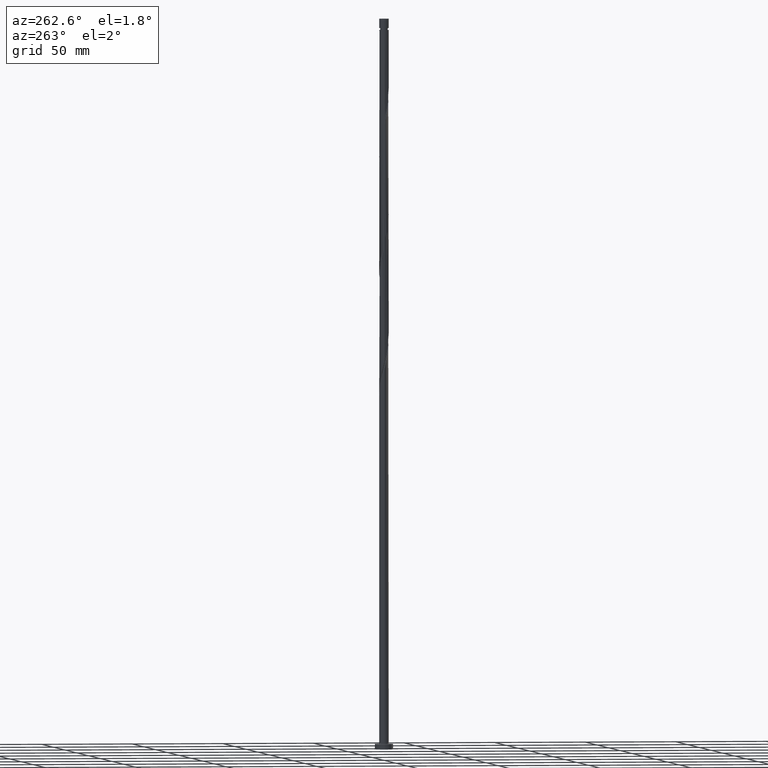
[diagram: clean part render]
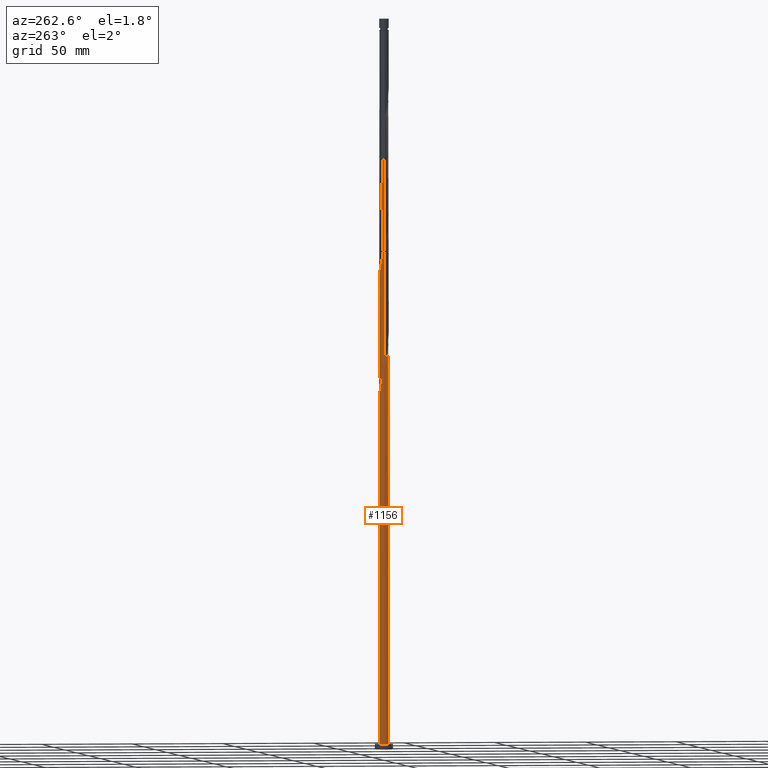
[diagram: same view with one face highlighted and labeled with its STEP entity id]
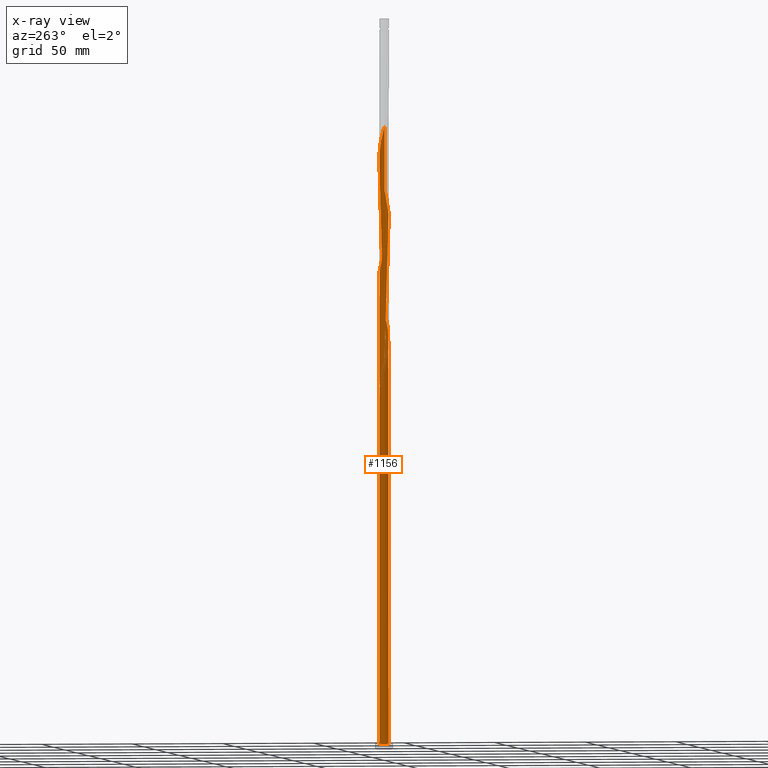
[diagram: x-ray of the same camera — body ghosted, the highlighted face saturated]
A machine part, auxiliary view. The second image highlights one B-rep face of the part: STEP entity #1156.
The next image is the same camera in x-ray: the body ghosted, the highlighted face saturated — about 0% of this face is hidden behind the body in this view.
In plain terms, the highlighted cylindrical surface (bore or boss wall) has radius 2.6 mm, axis along (-0, -0, -1).
Its self-contained STEP definition (entity closure, byte-faithful):
#2 = CARTESIAN_POINT ( 'NONE',  ( -1.947935995195029468, -1.722075886429971003, 216.0835075603918938 ) ) ;
#14 = CARTESIAN_POINT ( 'NONE',  ( -2.397883794386647338, 1.041551897145974959, 208.3057297826140939 ) ) ;
#20 = CARTESIAN_POINT ( 'NONE',  ( 1.547329210818890077, 2.089443062958790343, 251.6390631159474651 ) ) ;
#29 = CARTESIAN_POINT ( 'NONE',  ( 1.035846166874036633, -2.384747936066280882, 296.0835075603919222 ) ) ;
#38 = CARTESIAN_POINT ( 'NONE',  ( 0.02367180953326681811, 2.599892237273200291, 258.3057297826141507 ) ) ;
#55 = ORIENTED_EDGE ( 'NONE', *, *, #1277, .F. ) ;
#78 = CARTESIAN_POINT ( 'NONE',  ( -2.614213170551115795, 0.02380220047794936317, 274.9723964492807227 ) ) ;
#87 = CARTESIAN_POINT ( 'NONE',  ( -0.2969314949050338992, -2.597404229834851197, 290.5279520048362087 ) ) ;
#102 = CARTESIAN_POINT ( 'NONE',  ( -2.239736819813917812, 1.320446507045954565, 202.7501742270585225 ) ) ;
#105 =( BOUNDED_CURVE ( )  B_SPLINE_CURVE ( 2, ( #198, #454, #311, #1044, #903, #14, #1197, #704, #1116, #973, #983, #1293, #994, #1004, #1416, #1138, #235, #1859, #1547 ),
 .UNSPECIFIED., .F., .T. ) 
 B_SPLINE_CURVE_WITH_KNOTS ( ( 3, 2, 2, 2, 2, 2, 2, 2, 2, 3 ),
 ( 0.9295286012773116280, 0.9333333333333333481, 0.9416666666666666519, 0.9499999999999999556, 0.9583333333333333703, 0.9666666666666666741, 0.9749999999999999778, 0.9833333333333332815, 0.9916666666666666963, 1.000000000000000000 ),
 .UNSPECIFIED. ) 
 CURVE ( )  GEOMETRIC_REPRESENTATION_ITEM ( )  RATIONAL_B_SPLINE_CURVE ( ( 0.9066196499552521271, 0.9068171577856649623, 0.9090909090909637946, 0.9041108139712121794, 0.9090909090909637946, 0.9041108139712121794, 0.9090909090909637946, 0.9041108139712121794, 0.9090909090909637946, 0.9041108139712121794, 0.9090909090909637946, 0.9041108139712121794, 0.9090909090909637946, 0.9041108139712121794, 0.9090909090909637946, 0.9041108139712121794, 0.9090909090909637946, 0.9041108139712121794, 0.9090909090909637946 ) ) 
 REPRESENTATION_ITEM ( '' )  );
#115 = CARTESIAN_POINT ( 'NONE',  ( -2.600000000000000089, 0.000000000000000000, 3.000000000000000000 ) ) ;
#122 = CARTESIAN_POINT ( 'NONE',  ( -0.02367180953326649892, -2.599892237273200291, 224.9723964492807795 ) ) ;
#129 = CARTESIAN_POINT ( 'NONE',  ( 2.588124133439479557, 0.2482206073398471602, 309.4168408937251797 ) ) ;
#158 = CARTESIAN_POINT ( 'NONE',  ( -2.588124133439479113, -0.2482206073398485480, 209.4168408937252366 ) ) ;
#166 = CARTESIAN_POINT ( 'NONE',  ( -0.02367180953326649892, -2.599892237273200291, 291.6390631159473514 ) ) ;
#172 = DIRECTION ( 'NONE',  ( -0.000000000000000000, -0.000000000000000000, -1.000000000000000000 ) ) ;
#174 = CARTESIAN_POINT ( 'NONE',  ( 2.562035096327842432, 0.5202434151576467158, 243.8612853381696368 ) ) ;
#186 = CARTESIAN_POINT ( 'NONE',  ( -2.465329462490476686, 0.8259241135700318148, 271.6390631159474651 ) ) ;
#198 = CARTESIAN_POINT ( 'NONE',  ( -2.599999999999999645, -1.315460557018501568E-15, 212.6533952483578389 ) ) ;
#224 = CARTESIAN_POINT ( 'NONE',  ( -1.947935995195029468, -1.722075886429971003, 282.7501742270586647 ) ) ;
#234 = CARTESIAN_POINT ( 'NONE',  ( -1.547329210818889189, -2.089443062958790343, 284.9723964492807227 ) ) ;
#235 = CARTESIAN_POINT ( 'NONE',  ( -0.02367180953326483012, 2.599892237273194961, 196.0835075603919222 ) ) ;
#244 = CARTESIAN_POINT ( 'NONE',  ( -1.509027418418851019, 2.117270944036250935, 331.6390631159474083 ) ) ;
#257 = CARTESIAN_POINT ( 'NONE',  ( -1.035846166874037300, 2.384747936066280882, 329.4168408937251797 ) ) ;
#267 = CARTESIAN_POINT ( 'NONE',  ( 0.5637025146954313115, 2.538156708110447912, 322.7501742270584941 ) ) ;
#277 = CARTESIAN_POINT ( 'NONE',  ( 1.079096715020629205, 2.365491551376099899, 320.5279520048363793 ) ) ;
#285 = CARTESIAN_POINT ( 'NONE',  ( 2.239736819813917812, -1.320446507045955453, 302.7501742270584941 ) ) ;
#303 = ORIENTED_EDGE ( 'NONE', *, *, #1417, .F. ) ;
#307 = CARTESIAN_POINT ( 'NONE',  ( -2.600000000000003197, 9.118533406605447967E-16, 341.7358420946480919 ) ) ;
#311 = CARTESIAN_POINT ( 'NONE',  ( -2.588124133439476005, 0.2482206073398494917, 211.6390631159475220 ) ) ;
#315 = CARTESIAN_POINT ( 'NONE',  ( 0.5173934672954464409, -2.548000000000003151, 227.1946186715030080 ) ) ;
#325 = CARTESIAN_POINT ( 'NONE',  ( 0.5173934672954464409, -2.548000000000003151, 293.8612853381696937 ) ) ;
#336 = CARTESIAN_POINT ( 'NONE',  ( -2.378521340146216190, 1.085040681403034002, 270.5279520048362656 ) ) ;
#376 = CARTESIAN_POINT ( 'NONE',  ( 0.5637025146954313115, 2.538156708110447912, 256.0835075603918654 ) ) ;
#378 = CARTESIAN_POINT ( 'NONE',  ( -2.378521340146216190, 1.085040681403034002, 203.8612853381696368 ) ) ;
#387 = CARTESIAN_POINT ( 'NONE',  ( 1.079096715020629205, 2.365491551376099899, 253.8612853381696368 ) ) ;
#395 = CARTESIAN_POINT ( 'NONE',  ( 1.766938526082345140, 1.926812209551428623, 250.5279520048363509 ) ) ;
#405 = CARTESIAN_POINT ( 'NONE',  ( -2.600000000000003197, 9.118533406605447967E-16, 341.7358420946480919 ) ) ;
#413 = CARTESIAN_POINT ( 'NONE',  ( 2.465329462490476242, -0.8259241135700327030, 304.9723964492806658 ) ) ;
#416 = CARTESIAN_POINT ( 'NONE',  ( -2.583175377692926489, 0.2953048731074889299, 207.1946186715029796 ) ) ;
#423 = DIRECTION ( 'NONE',  ( -0.000000000000000000, -0.000000000000000000, -1.000000000000000000 ) ) ;
#429 = CARTESIAN_POINT ( 'NONE',  ( -1.916256930661818458, 1.757259051958636853, 333.8612853381696368 ) ) ;
#447 = VERTEX_POINT ( 'NONE', #115 ) ;
#454 = CARTESIAN_POINT ( 'NONE',  ( -2.599999999999999201, 0.1243943981455570141, 212.1448467227937442 ) ) ;
#458 = CARTESIAN_POINT ( 'NONE',  ( -1.327719895555432350, -2.252073916366152506, 219.4168408937251797 ) ) ;
#465 = CARTESIAN_POINT ( 'NONE',  ( -0.5637025146954297572, -2.538156708110448800, 289.4168408937252934 ) ) ;
#467 = EDGE_CURVE ( 'NONE', #447, #1392, #1355, .T. ) ;
#474 = CARTESIAN_POINT ( 'NONE',  ( -2.562035096327842432, -0.5202434151576470489, 277.1946186715028944 ) ) ;
#516 = CARTESIAN_POINT ( 'NONE',  ( 2.100952299481617214, -1.555852332688874462, 234.9723964492807227 ) ) ;
#525 = CARTESIAN_POINT ( 'NONE',  ( -0.7851990587523904885, 2.493619755288458251, 261.6390631159474083 ) ) ;
#530 = EDGE_CURVE ( 'NONE', #769, #1055, #828, .T. ) ;
#532 = DIRECTION ( 'NONE',  ( 0.000000000000000000, 0.000000000000000000, 1.000000000000000000 ) ) ;
#536 = CARTESIAN_POINT ( 'NONE',  ( -2.263408629347182899, -1.279445730227244837, 280.5279520048363224 ) ) ;
#541 = DIRECTION ( 'NONE',  ( 1.000000000000000000, 0.000000000000000000, 0.000000000000000000 ) ) ;
#546 = CARTESIAN_POINT ( 'NONE',  ( -2.600000000000003197, 2.571127452354323518E-15, 208.4025087613147775 ) ) ;
#548 = DIRECTION ( 'NONE',  ( 0.000000000000000000, -0.000000000000000000, -1.000000000000000000 ) ) ;
#556 = CARTESIAN_POINT ( 'NONE',  ( -1.509027418418851019, 2.117270944036250935, 198.3057297826140939 ) ) ;
#561 = CARTESIAN_POINT ( 'NONE',  ( -1.731561561842017705, 1.958665771228400132, 332.7501742270584373 ) ) ;
#565 = CARTESIAN_POINT ( 'NONE',  ( 0.000000000000000000, 0.000000000000000000, 3.000000000000000000 ) ) ;
#570 = CARTESIAN_POINT ( 'NONE',  ( 0.8304735344858259483, 2.478909186386046848, 321.6390631159474651 ) ) ;
#580 = AXIS2_PLACEMENT_3D ( 'NONE', #583, #423, #1593 ) ;
#583 = CARTESIAN_POINT ( 'NONE',  ( 0.000000000000000000, 0.000000000000000000, 400.0000000000000000 ) ) ;
#586 = CARTESIAN_POINT ( 'NONE',  ( -2.600000000000003197, 2.571127452354323518E-15, 208.4025087613147775 ) ) ;
#602 = ORIENTED_EDGE ( 'NONE', *, *, #1049, .T. ) ;
#613 = CARTESIAN_POINT ( 'NONE',  ( -1.286493274995684111, 2.275876116844102182, 263.8612853381695231 ) ) ;
#621 = CARTESIAN_POINT ( 'NONE',  ( 2.128933464307713130, 1.517339563308512274, 248.3057297826140655 ) ) ;
#630 = CARTESIAN_POINT ( 'NONE',  ( 1.916256930661818236, -1.757259051958636853, 300.5279520048363793 ) ) ;
#636 = VERTEX_POINT ( 'NONE', #586 ) ;
#666 = CARTESIAN_POINT ( 'NONE',  ( 1.731561561842017483, -1.958665771228400132, 232.7501742270585225 ) ) ;
#671 = CARTESIAN_POINT ( 'NONE',  ( -2.600000000000003197, 0.1481317173607276938, 207.7969174519301987 ) ) ;
#678 = CARTESIAN_POINT ( 'NONE',  ( -1.731561561842017705, 1.958665771228400132, 266.0835075603919222 ) ) ;
#689 = CARTESIAN_POINT ( 'NONE',  ( -2.552137584834735851, 0.5668075457370292947, 206.0835075603918938 ) ) ;
#695 = CARTESIAN_POINT ( 'NONE',  ( 0.2969314949050343433, 2.597404229834851197, 323.8612853381696368 ) ) ;
#696 = CARTESIAN_POINT ( 'NONE',  ( -2.100952299481618546, 1.555852332688874462, 201.6390631159474651 ) ) ;
#703 = CARTESIAN_POINT ( 'NONE',  ( -2.100952299481618546, 1.555852332688874462, 334.9723964492807795 ) ) ;
#704 = CARTESIAN_POINT ( 'NONE',  ( -2.128933464307709134, 1.517339563308511607, 206.0835075603918938 ) ) ;
#706 = CARTESIAN_POINT ( 'NONE',  ( 0.7851990587523896004, -2.493619755288459139, 228.3057297826140655 ) ) ;
#712 = CARTESIAN_POINT ( 'NONE',  ( -2.600000000000001865, 0.1481317173607396842, 341.1302507852634562 ) ) ;
#713 = CARTESIAN_POINT ( 'NONE',  ( -1.766938526082344696, -1.926812209551429289, 217.1946186715029796 ) ) ;
#732 = AXIS2_PLACEMENT_3D ( 'NONE', #1853, #548, #901 ) ;
#736 = CARTESIAN_POINT ( 'NONE',  ( -2.600000000000003642, -0.1243943981455461339, 208.9110572868788722 ) ) ;
#743 = CARTESIAN_POINT ( 'NONE',  ( -2.263408629347182899, -1.279445730227244837, 213.8612853381696652 ) ) ;
#752 = CARTESIAN_POINT ( 'NONE',  ( 2.263408629347182899, 1.279445730227244393, 247.1946186715030080 ) ) ;
#757 = ORIENTED_EDGE ( 'NONE', *, *, #530, .T. ) ;
#762 = CARTESIAN_POINT ( 'NONE',  ( 0.8304735344858259483, 2.478909186386046848, 254.9723964492807795 ) ) ;
#769 = VERTEX_POINT ( 'NONE', #1017 ) ;
#773 = CARTESIAN_POINT ( 'NONE',  ( 1.509027418418850353, -2.117270944036251823, 298.3057297826140939 ) ) ;
#792 = AXIS2_PLACEMENT_3D ( 'NONE', #1845, #532, #541 ) ;
#815 = CARTESIAN_POINT ( 'NONE',  ( -2.128933464307713130, -1.517339563308513162, 281.6390631159474651 ) ) ;
#826 = CARTESIAN_POINT ( 'NONE',  ( -2.583175377692926489, 0.2953048731074889299, 273.8612853381696368 ) ) ;
#828 = CIRCLE ( 'NONE', #732, 2.600000000000000089 ) ;
#832 = CIRCLE ( 'NONE', #1566, 2.600000000000000089 ) ;
#858 = CARTESIAN_POINT ( 'NONE',  ( -0.5173934672954461078, 2.548000000000003151, 327.1946186715030649 ) ) ;
#861 = CARTESIAN_POINT ( 'NONE',  ( -1.731561561842017705, 1.958665771228400132, 199.4168408937252082 ) ) ;
#869 = CARTESIAN_POINT ( 'NONE',  ( 2.552137584834734962, -0.5668075457370308490, 306.0835075603918654 ) ) ;
#870 = CYLINDRICAL_SURFACE ( 'NONE', #580, 2.600000000000000089 ) ;
#888 = LINE ( 'NONE', #1626, #1297 ) ;
#901 = DIRECTION ( 'NONE',  ( -1.000000000000000000, 0.000000000000000000, 0.000000000000000000 ) ) ;
#903 = CARTESIAN_POINT ( 'NONE',  ( -2.479959445357243553, 0.7808976561518116144, 209.4168408937252366 ) ) ;
#905 = ORIENTED_EDGE ( 'NONE', *, *, #1553, .T. ) ;
#907 = CARTESIAN_POINT ( 'NONE',  ( -2.397883794386652667, -1.041551897145975625, 212.7501742270584941 ) ) ;
#917 = CARTESIAN_POINT ( 'NONE',  ( 0.7851990587523896004, -2.493619755288459139, 294.9723964492806658 ) ) ;
#927 = CARTESIAN_POINT ( 'NONE',  ( 1.286493274995683889, -2.275876116844102182, 297.1946186715028375 ) ) ;
#962 = CARTESIAN_POINT ( 'NONE',  ( 2.465329462490476242, -0.8259241135700327030, 238.3057297826140655 ) ) ;
#965 = CARTESIAN_POINT ( 'NONE',  ( -1.035846166874037300, 2.384747936066280882, 196.0835075603918938 ) ) ;
#971 = CARTESIAN_POINT ( 'NONE',  ( 1.916256930661818236, -1.757259051958636853, 233.8612853381696368 ) ) ;
#973 = CARTESIAN_POINT ( 'NONE',  ( -1.766938526082341365, 1.926812209551426402, 203.8612853381696652 ) ) ;
#983 = CARTESIAN_POINT ( 'NONE',  ( -1.547329210818885414, 2.089443062958788566, 202.7501742270585510 ) ) ;
#992 = CARTESIAN_POINT ( 'NONE',  ( 2.562035096327842432, 0.5202434151576467158, 310.5279520048363793 ) ) ;
#994 = CARTESIAN_POINT ( 'NONE',  ( -1.079096715020626318, 2.365491551376097235, 200.5279520048363509 ) ) ;
#995 = EDGE_CURVE ( 'NONE', #769, #636, #1697, .T. ) ;
#1004 = CARTESIAN_POINT ( 'NONE',  ( -0.8304735344858227286, 2.478909186386042407, 199.4168408937251513 ) ) ;
#1005 = CARTESIAN_POINT ( 'NONE',  ( -1.286493274995684111, 2.275876116844102182, 197.1946186715030080 ) ) ;
#1012 = CARTESIAN_POINT ( 'NONE',  ( 2.263408629347182899, 1.279445730227244393, 313.8612853381696368 ) ) ;
#1014 = CARTESIAN_POINT ( 'NONE',  ( 0.5173934672954468850, 2.547999999999998266, 193.8612853381696652 ) ) ;
#1017 = CARTESIAN_POINT ( 'NONE',  ( -0.5173934672954459968, 2.548000000000002707, 193.8612853381696652 ) ) ;
#1021 = CARTESIAN_POINT ( 'NONE',  ( -2.552137584834735851, 0.5668075457370292947, 339.4168408937251229 ) ) ;
#1022 = CARTESIAN_POINT ( 'NONE',  ( 1.035846166874036633, -2.384747936066280882, 229.4168408937252082 ) ) ;
#1032 = CARTESIAN_POINT ( 'NONE',  ( -2.562035096327842432, -0.5202434151576470489, 210.5279520048363224 ) ) ;
#1044 = CARTESIAN_POINT ( 'NONE',  ( -2.562035096327837547, 0.5202434151576464938, 210.5279520048362656 ) ) ;
#1049 = EDGE_CURVE ( 'NONE', #1392, #447, #832, .T. ) ;
#1050 = CARTESIAN_POINT ( 'NONE',  ( -0.2969314949050338992, -2.597404229834851197, 223.8612853381696368 ) ) ;
#1055 = VERTEX_POINT ( 'NONE', #1014 ) ;
#1057 = CARTESIAN_POINT ( 'NONE',  ( 1.327719895555433904, 2.252073916366151618, 252.7501742270585225 ) ) ;
#1064 = LINE ( 'NONE', #1189, #1887 ) ;
#1065 = CARTESIAN_POINT ( 'NONE',  ( -1.079096715020628761, -2.365491551376099899, 287.1946186715028944 ) ) ;
#1072 = VERTEX_POINT ( 'NONE', #307 ) ;
#1101 = CARTESIAN_POINT ( 'NONE',  ( 0.2969314949050343433, 2.597404229834851197, 257.1946186715029512 ) ) ;
#1113 = CARTESIAN_POINT ( 'NONE',  ( -1.327719895555432350, -2.252073916366152506, 286.0835075603920359 ) ) ;
#1116 = CARTESIAN_POINT ( 'NONE',  ( -1.947935995195025916, 1.722075886429969449, 204.9723964492808364 ) ) ;
#1124 = CARTESIAN_POINT ( 'NONE',  ( 2.397883794386653111, 1.041551897145974737, 246.0835075603918369 ) ) ;
#1136 = CARTESIAN_POINT ( 'NONE',  ( 2.479959445357248438, 0.7808976561518106152, 311.6390631159474651 ) ) ;
#1138 = CARTESIAN_POINT ( 'NONE',  ( -0.2969314949050327335, 2.597404229834846312, 197.1946186715029512 ) ) ;
#1147 = CARTESIAN_POINT ( 'NONE',  ( -2.583175377692926489, 0.2953048731074889299, 340.5279520048362656 ) ) ;
#1156 = ADVANCED_FACE ( 'NONE', ( #1888 ), #870, .T. ) ;
#1163 = CARTESIAN_POINT ( 'NONE',  ( -2.465329462490476686, 0.8259241135700318148, 338.3057297826140939 ) ) ;
#1165 = CARTESIAN_POINT ( 'NONE',  ( -1.079096715020628761, -2.365491551376099899, 220.5279520048363509 ) ) ;
#1174 = CARTESIAN_POINT ( 'NONE',  ( -2.479959445357248438, -0.7808976561518115034, 211.6390631159474367 ) ) ;
#1183 = CARTESIAN_POINT ( 'NONE',  ( -0.8304735344858255042, -2.478909186386046848, 221.6390631159474083 ) ) ;
#1188 = EDGE_LOOP ( 'NONE', ( #303, #55, #905, #1382, #602, #1478, #1468, #757, #1531 ) ) ;
#1189 = CARTESIAN_POINT ( 'NONE',  ( -2.600000000000000089, 0.000000000000000000, 400.0000000000000000 ) ) ;
#1193 = CARTESIAN_POINT ( 'NONE',  ( -2.128933464307713130, -1.517339563308513162, 214.9723964492807227 ) ) ;
#1197 = CARTESIAN_POINT ( 'NONE',  ( -2.263408629347178458, 1.279445730227243949, 207.1946186715030365 ) ) ;
#1203 = CARTESIAN_POINT ( 'NONE',  ( 2.239736819813917812, -1.320446507045955453, 236.0835075603918938 ) ) ;
#1211 = CARTESIAN_POINT ( 'NONE',  ( 1.947935995195030801, 1.722075886429970115, 249.4168408937252650 ) ) ;
#1238 =( BOUNDED_CURVE ( )  B_SPLINE_CURVE ( 2, ( #1303, #736, #158, #1032, #1174, #907, #743, #1193, #2, #713, #1765, #458, #1165, #1183, #1758, #1050, #122, #1628, #315, #706, #1022, #1600, #1704, #666, #971, #516, #1203, #1840, #962, #1271, #1496, #1822, #1508, #174, #1695, #1124, #752, #621, #1211, #395, #20, #1057, #387, #762, #376, #1101, #38, #1645, #1489, #525, #1349, #613, #1775, #678, #1360, #1783, #1684, #336, #186, #1260, #826, #78, #1414, #474, #1832, #1555, #536, #815, #224, #1404, #234, #1113, #1065, #1546, #465, #87, #166, #1636, #325, #917, #29, #927, #773, #1369, #630, #1250, #285, #1291, #413, #869, #1583, #1452, #129, #992, #1136, #1729, #1012, #1428, #1713, #1575, #1282, #1737, #277, #570, #267, #695, #1592, #1460, #858, #1721, #257, #1564, #244, #561, #429, #703, #1442, #1748, #1163, #1021, #1147, #712, #405 ),
 .UNSPECIFIED., .F., .T. ) 
 B_SPLINE_CURVE_WITH_KNOTS ( ( 3, 2, 2, 2, 2, 2, 2, 2, 2, 2, 2, 2, 2, 2, 2, 2, 2, 2, 2, 2, 2, 2, 2, 2, 2, 2, 2, 2, 2, 2, 2, 2, 2, 2, 2, 2, 2, 2, 2, 2, 2, 2, 2, 2, 2, 2, 2, 2, 2, 2, 2, 2, 2, 2, 2, 2, 2, 2, 2, 2, 2, 3 ),
 ( 0.05452860127731132961, 0.05833333333333334814, 0.06666666666666665186, 0.07499999999999995559, 0.08333333333333337034, 0.09166666666666667407, 0.09999999999999997780, 0.1083333333333332815, 0.1166666666666666963, 0.1250000000000000000, 0.1333333333333333037, 0.1416666666666667185, 0.1500000000000000222, 0.1583333333333333259, 0.1666666666666666297, 0.1750000000000000444, 0.1833333333333333481, 0.1916666666666666519, 0.1999999999999999556, 0.2083333333333333703, 0.2166666666666666741, 0.2249999999999999778, 0.2333333333333332815, 0.2416666666666666963, 0.2500000000000000000, 0.2583333333333333037, 0.2666666666666667185, 0.2750000000000000222, 0.2833333333333333259, 0.2916666666666666297, 0.3000000000000000444, 0.3083333333333333481, 0.3166666666666666519, 0.3249999999999999556, 0.3333333333333333703, 0.3416666666666666741, 0.3499999999999999778, 0.3583333333333332815, 0.3666666666666666963, 0.3750000000000000000, 0.3833333333333333037, 0.3916666666666667185, 0.4000000000000000222, 0.4083333333333333259, 0.4166666666666666297, 0.4250000000000000444, 0.4333333333333333481, 0.4416666666666666519, 0.4499999999999999556, 0.4583333333333333703, 0.4666666666666666741, 0.4749999999999999778, 0.4833333333333332815, 0.4916666666666666963, 0.5000000000000000000, 0.5083333333333333037, 0.5166666666666666075, 0.5250000000000000222, 0.5333333333333333259, 0.5416666666666667407, 0.5500000000000000444, 0.5545286012773109618 ),
 .UNSPECIFIED. ) 
 CURVE ( )  GEOMETRIC_REPRESENTATION_ITEM ( )  RATIONAL_B_SPLINE_CURVE ( ( 0.9066196499552594545, 0.9068171577856720678, 0.9090909090909711221, 0.9041108139712192848, 0.9090909090909711221, 0.9041108139712192848, 0.9090909090909711221, 0.9041108139712192848, 0.9090909090909711221, 0.9041108139712192848, 0.9090909090909711221, 0.9041108139712192848, 0.9090909090909711221, 0.9041108139712192848, 0.9090909090909711221, 0.9041108139712192848, 0.9090909090909711221, 0.9041108139712192848, 0.9090909090909711221, 0.9041108139712192848, 0.9090909090909711221, 0.9041108139712192848, 0.9090909090909711221, 0.9041108139712192848, 0.9090909090909711221, 0.9041108139712192848, 0.9090909090909711221, 0.9041108139712192848, 0.9090909090909711221, 0.9041108139712192848, 0.9090909090909711221, 0.9041108139712192848, 0.9090909090909711221, 0.9041108139712192848, 0.9090909090909711221, 0.9041108139712192848, 0.9090909090909711221, 0.9041108139712192848, 0.9090909090909711221, 0.9041108139712192848, 0.9090909090909711221, 0.9041108139712192848, 0.9090909090909711221, 0.9041108139712192848, 0.9090909090909711221, 0.9041108139712192848, 0.9090909090909711221, 0.9041108139712192848, 0.9090909090909711221, 0.9041108139712192848, 0.9090909090909711221, 0.9041108139712192848, 0.9090909090909711221, 0.9041108139712192848, 0.9090909090909711221, 0.9041108139712192848, 0.9090909090909711221, 0.9041108139712192848, 0.9090909090909711221, 0.9041108139712192848, 0.9090909090909711221, 0.9041108139712192848, 0.9090909090909711221, 0.9041108139712192848, 0.9090909090909711221, 0.9041108139712192848, 0.9090909090909711221, 0.9041108139712192848, 0.9090909090909711221, 0.9041108139712192848, 0.9090909090909711221, 0.9041108139712192848, 0.9090909090909711221, 0.9041108139712192848, 0.9090909090909711221, 0.9041108139712192848, 0.9090909090909711221, 0.9041108139712192848, 0.9090909090909711221, 0.9041108139712192848, 0.9090909090909711221, 0.9041108139712192848, 0.9090909090909711221, 0.9041108139712192848, 0.9090909090909711221, 0.9041108139712192848, 0.9090909090909711221, 0.9041108139712192848, 0.9090909090909711221, 0.9041108139712192848, 0.9090909090909711221, 0.9041108139712192848, 0.9090909090909711221, 0.9041108139712192848, 0.9090909090909711221, 0.9041108139712192848, 0.9090909090909711221, 0.9041108139712192848, 0.9090909090909711221, 0.9041108139712192848, 0.9090909090909711221, 0.9041108139712192848, 0.9090909090909711221, 0.9041108139712192848, 0.9090909090909711221, 0.9041108139712192848, 0.9090909090909711221, 0.9041108139712192848, 0.9090909090909711221, 0.9041108139712192848, 0.9090909090909711221, 0.9041108139712192848, 0.9090909090909711221, 0.9041108139712192848, 0.9090909090909711221, 0.9041108139712192848, 0.9090909090909711221, 0.9041108139712192848, 0.9090909090909711221, 0.9041108139712192848, 0.9090909090909711221, 0.9063845652765185612, 0.9066196499552594545 ) ) 
 REPRESENTATION_ITEM ( '' )  );
#1250 = CARTESIAN_POINT ( 'NONE',  ( 2.100952299481617214, -1.555852332688874462, 301.6390631159474651 ) ) ;
#1260 = CARTESIAN_POINT ( 'NONE',  ( -2.552137584834735851, 0.5668075457370292947, 272.7501742270584941 ) ) ;
#1271 = CARTESIAN_POINT ( 'NONE',  ( 2.552137584834734962, -0.5668075457370308490, 239.4168408937251797 ) ) ;
#1277 = EDGE_CURVE ( 'NONE', #636, #1072, #1238, .T. ) ;
#1282 = CARTESIAN_POINT ( 'NONE',  ( 1.547329210818890077, 2.089443062958790343, 318.3057297826142076 ) ) ;
#1291 = CARTESIAN_POINT ( 'NONE',  ( 2.378521340146216190, -1.085040681403034446, 303.8612853381696937 ) ) ;
#1293 = CARTESIAN_POINT ( 'NONE',  ( -1.327719895555428797, 2.252073916366149398, 201.6390631159474083 ) ) ;
#1297 = VECTOR ( 'NONE', #172, 1000.000000000000000 ) ;
#1303 = CARTESIAN_POINT ( 'NONE',  ( -2.600000000000003197, 2.571127452354323518E-15, 208.4025087613147775 ) ) ;
#1311 = DIRECTION ( 'NONE',  ( 0.000000000000000000, 0.000000000000000000, 1.000000000000000000 ) ) ;
#1328 = CARTESIAN_POINT ( 'NONE',  ( 2.600000000000000089, 0.000000000000000000, 3.000000000000000000 ) ) ;
#1349 = CARTESIAN_POINT ( 'NONE',  ( -1.035846166874037300, 2.384747936066280882, 262.7501742270585510 ) ) ;
#1355 = CIRCLE ( 'NONE', #792, 2.600000000000000089 ) ;
#1360 = CARTESIAN_POINT ( 'NONE',  ( -1.916256930661818458, 1.757259051958636853, 267.1946186715028944 ) ) ;
#1369 = CARTESIAN_POINT ( 'NONE',  ( 1.731561561842017483, -1.958665771228400132, 299.4168408937252366 ) ) ;
#1382 = ORIENTED_EDGE ( 'NONE', *, *, #467, .T. ) ;
#1392 = VERTEX_POINT ( 'NONE', #1328 ) ;
#1404 = CARTESIAN_POINT ( 'NONE',  ( -1.766938526082344696, -1.926812209551429289, 283.8612853381695800 ) ) ;
#1414 = CARTESIAN_POINT ( 'NONE',  ( -2.588124133439479113, -0.2482206073398485480, 276.0835075603919222 ) ) ;
#1416 = CARTESIAN_POINT ( 'NONE',  ( -0.5637025146954277588, 2.538156708110444804, 198.3057297826141223 ) ) ;
#1417 = EDGE_CURVE ( 'NONE', #1072, #1828, #1064, .T. ) ;
#1428 = CARTESIAN_POINT ( 'NONE',  ( 2.128933464307713130, 1.517339563308512274, 314.9723964492806658 ) ) ;
#1431 = CARTESIAN_POINT ( 'NONE',  ( -0.5173934672954459968, 2.548000000000002707, 193.8612853381696652 ) ) ;
#1442 = CARTESIAN_POINT ( 'NONE',  ( -2.239736819813917812, 1.320446507045954565, 336.0835075603918654 ) ) ;
#1444 = CARTESIAN_POINT ( 'NONE',  ( -2.465329462490476686, 0.8259241135700318148, 204.9723964492807795 ) ) ;
#1452 = CARTESIAN_POINT ( 'NONE',  ( 2.614213170551116239, -0.02380220047795021318, 308.3057297826139802 ) ) ;
#1460 = CARTESIAN_POINT ( 'NONE',  ( -0.2495878758385006446, 2.602380244711548052, 326.0835075603919222 ) ) ;
#1468 = ORIENTED_EDGE ( 'NONE', *, *, #995, .F. ) ;
#1478 = ORIENTED_EDGE ( 'NONE', *, *, #1553, .F. ) ;
#1489 = CARTESIAN_POINT ( 'NONE',  ( -0.5173934672954461078, 2.548000000000003151, 260.5279520048363793 ) ) ;
#1496 = CARTESIAN_POINT ( 'NONE',  ( 2.583175377692926489, -0.2953048731074893185, 240.5279520048363224 ) ) ;
#1508 = CARTESIAN_POINT ( 'NONE',  ( 2.588124133439479557, 0.2482206073398471602, 242.7501742270585225 ) ) ;
#1518 = CARTESIAN_POINT ( 'NONE',  ( -2.599999999999999645, -1.315460557018501568E-15, 212.6533952483578389 ) ) ;
#1531 = ORIENTED_EDGE ( 'NONE', *, *, #1607, .F. ) ;
#1546 = CARTESIAN_POINT ( 'NONE',  ( -0.8304735344858255042, -2.478909186386046848, 288.3057297826139802 ) ) ;
#1547 = CARTESIAN_POINT ( 'NONE',  ( 0.5173934672954468850, 2.547999999999998266, 193.8612853381696652 ) ) ;
#1553 = EDGE_CURVE ( 'NONE', #636, #447, #888, .T. ) ;
#1555 = CARTESIAN_POINT ( 'NONE',  ( -2.397883794386652667, -1.041551897145975625, 279.4168408937251229 ) ) ;
#1564 = CARTESIAN_POINT ( 'NONE',  ( -1.286493274995684111, 2.275876116844102182, 330.5279520048363224 ) ) ;
#1566 = AXIS2_PLACEMENT_3D ( 'NONE', #565, #1311, #1609 ) ;
#1575 = CARTESIAN_POINT ( 'NONE',  ( 1.766938526082345140, 1.926812209551428623, 317.1946186715029512 ) ) ;
#1583 = CARTESIAN_POINT ( 'NONE',  ( 2.583175377692926489, -0.2953048731074893185, 307.1946186715030649 ) ) ;
#1585 = CARTESIAN_POINT ( 'NONE',  ( -0.7851990587523904885, 2.493619755288458251, 194.9723964492806942 ) ) ;
#1592 = CARTESIAN_POINT ( 'NONE',  ( 0.02367180953326681811, 2.599892237273200291, 324.9723964492808364 ) ) ;
#1593 = DIRECTION ( 'NONE',  ( -1.000000000000000000, 0.000000000000000000, 0.000000000000000000 ) ) ;
#1600 = CARTESIAN_POINT ( 'NONE',  ( 1.286493274995683889, -2.275876116844102182, 230.5279520048362656 ) ) ;
#1607 = EDGE_CURVE ( 'NONE', #1828, #1055, #105, .T. ) ;
#1609 = DIRECTION ( 'NONE',  ( 1.000000000000000000, 0.000000000000000000, 0.000000000000000000 ) ) ;
#1626 = CARTESIAN_POINT ( 'NONE',  ( -2.600000000000000089, 0.000000000000000000, 400.0000000000000000 ) ) ;
#1628 = CARTESIAN_POINT ( 'NONE',  ( 0.2495878758385020879, -2.602380244711547164, 226.0835075603918654 ) ) ;
#1636 = CARTESIAN_POINT ( 'NONE',  ( 0.2495878758385020879, -2.602380244711547164, 292.7501742270585510 ) ) ;
#1643 = DIRECTION ( 'NONE',  ( -0.000000000000000000, -0.000000000000000000, -1.000000000000000000 ) ) ;
#1645 = CARTESIAN_POINT ( 'NONE',  ( -0.2495878758385006446, 2.602380244711548052, 259.4168408937251229 ) ) ;
#1684 = CARTESIAN_POINT ( 'NONE',  ( -2.239736819813917812, 1.320446507045954565, 269.4168408937251229 ) ) ;
#1695 = CARTESIAN_POINT ( 'NONE',  ( 2.479959445357248438, 0.7808976561518106152, 244.9723964492807511 ) ) ;
#1697 =( BOUNDED_CURVE ( )  B_SPLINE_CURVE ( 2, ( #1431, #1585, #965, #1005, #556, #861, #1716, #696, #102, #378, #1444, #689, #416, #671, #546 ),
 .UNSPECIFIED., .F., .T. ) 
 B_SPLINE_CURVE_WITH_KNOTS ( ( 3, 2, 2, 2, 2, 2, 2, 3 ),
 ( 0.000000000000000000, 0.008333333333333303727, 0.01666666666666671848, 0.02500000000000002220, 0.03333333333333332593, 0.04166666666666662966, 0.05000000000000004441, 0.05452860127731132961 ),
 .UNSPECIFIED. ) 
 CURVE ( )  GEOMETRIC_REPRESENTATION_ITEM ( )  RATIONAL_B_SPLINE_CURVE ( ( 0.9090909090909711221, 0.9041108139712192848, 0.9090909090909711221, 0.9041108139712192848, 0.9090909090909711221, 0.9041108139712192848, 0.9090909090909711221, 0.9041108139712192848, 0.9090909090909711221, 0.9041108139712192848, 0.9090909090909711221, 0.9041108139712192848, 0.9090909090909711221, 0.9063845652765183392, 0.9066196499552594545 ) ) 
 REPRESENTATION_ITEM ( '' )  );
#1704 = CARTESIAN_POINT ( 'NONE',  ( 1.509027418418850353, -2.117270944036251823, 231.6390631159474651 ) ) ;
#1713 = CARTESIAN_POINT ( 'NONE',  ( 1.947935995195030801, 1.722075886429970115, 316.0835075603917517 ) ) ;
#1716 = CARTESIAN_POINT ( 'NONE',  ( -1.916256930661818458, 1.757259051958636853, 200.5279520048362940 ) ) ;
#1721 = CARTESIAN_POINT ( 'NONE',  ( -0.7851990587523904885, 2.493619755288458251, 328.3057297826140939 ) ) ;
#1729 = CARTESIAN_POINT ( 'NONE',  ( 2.397883794386653111, 1.041551897145974737, 312.7501742270584373 ) ) ;
#1737 = CARTESIAN_POINT ( 'NONE',  ( 1.327719895555433904, 2.252073916366151618, 319.4168408937251229 ) ) ;
#1748 = CARTESIAN_POINT ( 'NONE',  ( -2.378521340146216190, 1.085040681403034002, 337.1946186715028944 ) ) ;
#1758 = CARTESIAN_POINT ( 'NONE',  ( -0.5637025146954297572, -2.538156708110448800, 222.7501742270585794 ) ) ;
#1765 = CARTESIAN_POINT ( 'NONE',  ( -1.547329210818889189, -2.089443062958790343, 218.3057297826141223 ) ) ;
#1775 = CARTESIAN_POINT ( 'NONE',  ( -1.509027418418851019, 2.117270944036250935, 264.9723964492808364 ) ) ;
#1783 = CARTESIAN_POINT ( 'NONE',  ( -2.100952299481618546, 1.555852332688874462, 268.3057297826140939 ) ) ;
#1822 = CARTESIAN_POINT ( 'NONE',  ( 2.614213170551116239, -0.02380220047795021318, 241.6390631159473514 ) ) ;
#1828 = VERTEX_POINT ( 'NONE', #1518 ) ;
#1832 = CARTESIAN_POINT ( 'NONE',  ( -2.479959445357248438, -0.7808976561518115034, 278.3057297826140370 ) ) ;
#1840 = CARTESIAN_POINT ( 'NONE',  ( 2.378521340146216190, -1.085040681403034446, 237.1946186715029228 ) ) ;
#1845 = CARTESIAN_POINT ( 'NONE',  ( 0.000000000000000000, 0.000000000000000000, 3.000000000000000000 ) ) ;
#1853 = CARTESIAN_POINT ( 'NONE',  ( 0.000000000000000000, 0.000000000000000000, 193.8612853381696937 ) ) ;
#1859 = CARTESIAN_POINT ( 'NONE',  ( 0.2495878758385028096, 2.602380244711542723, 194.9723964492807227 ) ) ;
#1887 = VECTOR ( 'NONE', #1643, 1000.000000000000000 ) ;
#1888 = FACE_OUTER_BOUND ( 'NONE', #1188, .T. ) ;